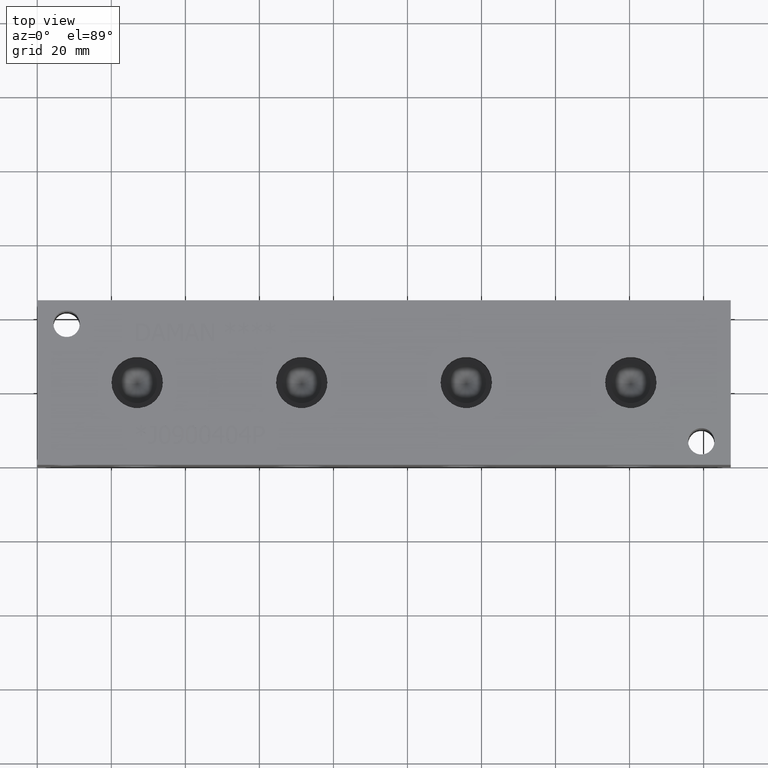
[diagram: clean part render]
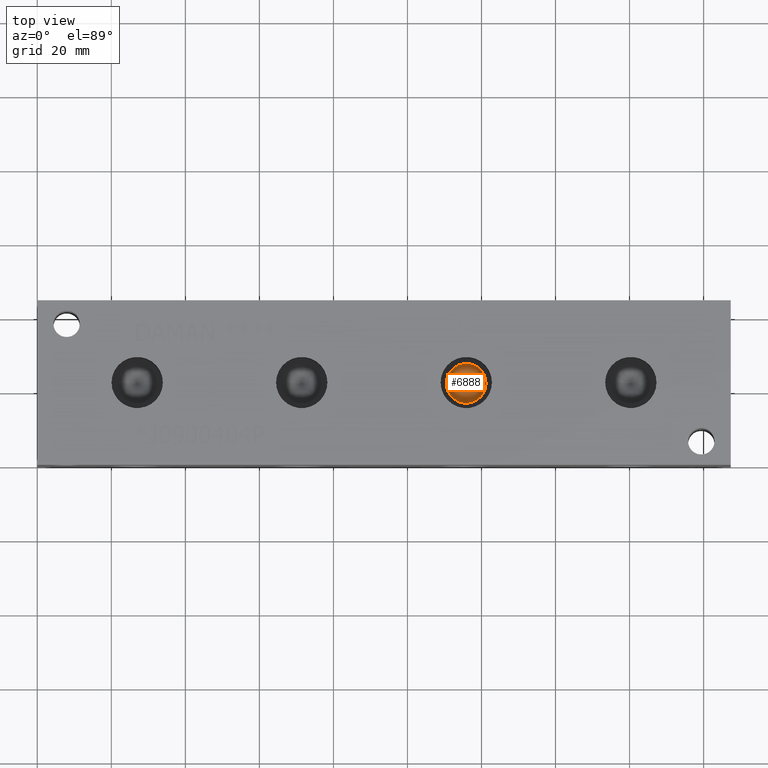
[diagram: same view with one face highlighted and labeled with its STEP entity id]
A machine part, top view. The second image highlights one B-rep face of the part: STEP entity #6888.
In plain terms, the highlighted conical surface has half-angle 60 deg.
Its self-contained STEP definition (entity closure, byte-faithful):
#18=CONICAL_SURFACE('',#7220,2.6797,1.0471975511966);
#102=CIRCLE('',#7221,5.3594);
#103=CIRCLE('',#7222,5.3594);
#734=FACE_OUTER_BOUND('',#1124,.T.);
#1124=EDGE_LOOP('',(#6067,#6068,#6069,#6070));
#1830=LINE('',#11618,#2520);
#2520=VECTOR('',#8530,2.6797);
#3324=VERTEX_POINT('',#11614);
#3325=VERTEX_POINT('',#11615);
#3326=VERTEX_POINT('',#11617);
#4254=EDGE_CURVE('',#3324,#3325,#102,.T.);
#4255=EDGE_CURVE('',#3325,#3326,#1830,.T.);
#4256=EDGE_CURVE('',#3325,#3324,#103,.T.);
#6067=ORIENTED_EDGE('',*,*,#4254,.T.);
#6068=ORIENTED_EDGE('',*,*,#4255,.T.);
#6069=ORIENTED_EDGE('',*,*,#4255,.F.);
#6070=ORIENTED_EDGE('',*,*,#4256,.T.);
#6888=ADVANCED_FACE('',(#734),#18,.F.);
#7220=AXIS2_PLACEMENT_3D('',#11613,#8526,#8527);
#7221=AXIS2_PLACEMENT_3D('',#11616,#8528,#8529);
#7222=AXIS2_PLACEMENT_3D('',#11619,#8531,#8532);
#8526=DIRECTION('center_axis',(0.,0.,1.));
#8527=DIRECTION('ref_axis',(1.,0.,0.));
#8528=DIRECTION('center_axis',(0.,0.,1.));
#8529=DIRECTION('ref_axis',(1.,0.,0.));
#8530=DIRECTION('',(0.866025403784439,1.06057523872491E-16,-0.5));
#8531=DIRECTION('center_axis',(0.,0.,1.));
#8532=DIRECTION('ref_axis',(1.,0.,0.));
#11613=CARTESIAN_POINT('Origin',(115.8748,22.225,31.1888444836526));
#11614=CARTESIAN_POINT('',(121.2342,22.225,32.73597));
#11615=CARTESIAN_POINT('',(110.5154,22.225,32.73597));
#11616=CARTESIAN_POINT('Origin',(115.8748,22.225,32.73597));
#11617=CARTESIAN_POINT('',(115.8748,22.225,29.6417189673051));
#11618=CARTESIAN_POINT('',(113.1951,22.225,31.1888444836526));
#11619=CARTESIAN_POINT('Origin',(115.8748,22.225,32.73597));